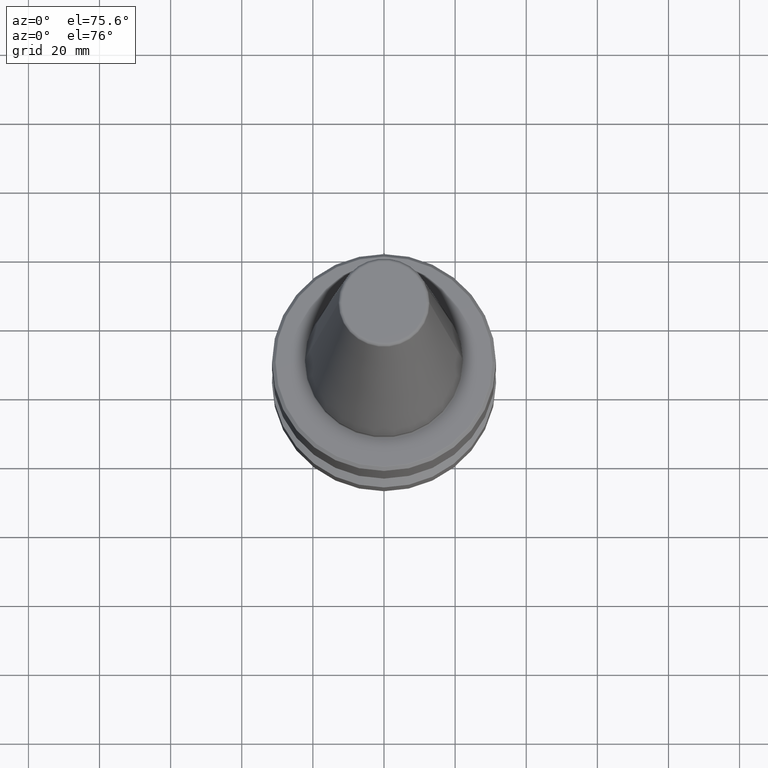
[diagram: clean part render]
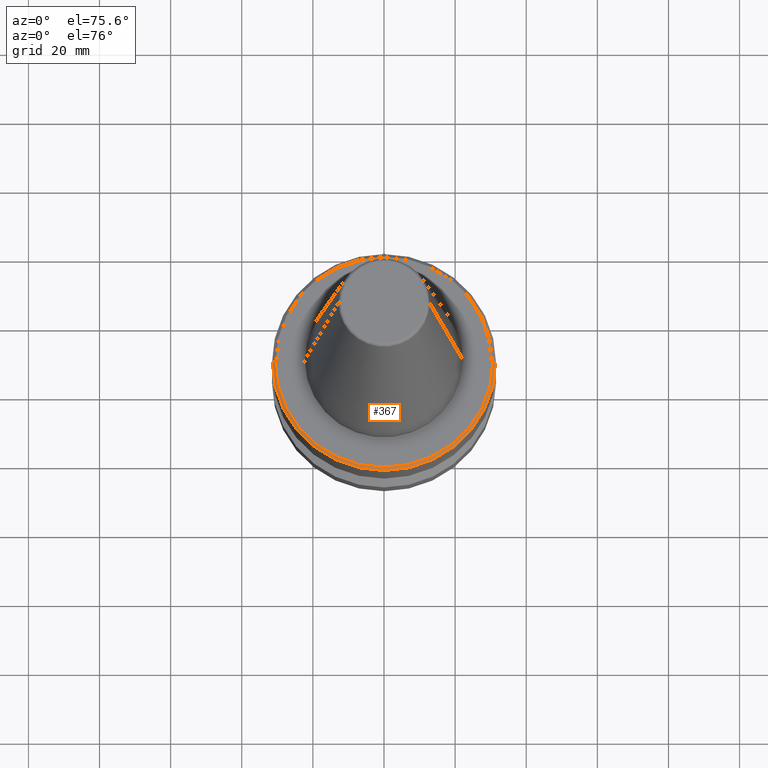
[diagram: same view with one face highlighted and labeled with its STEP entity id]
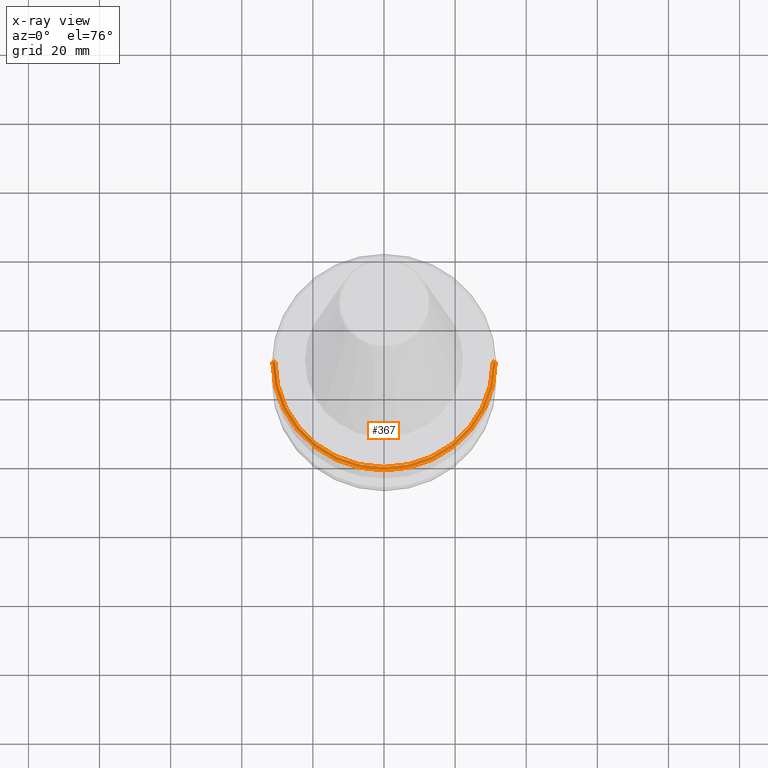
[diagram: x-ray of the same camera — body ghosted, the highlighted face saturated]
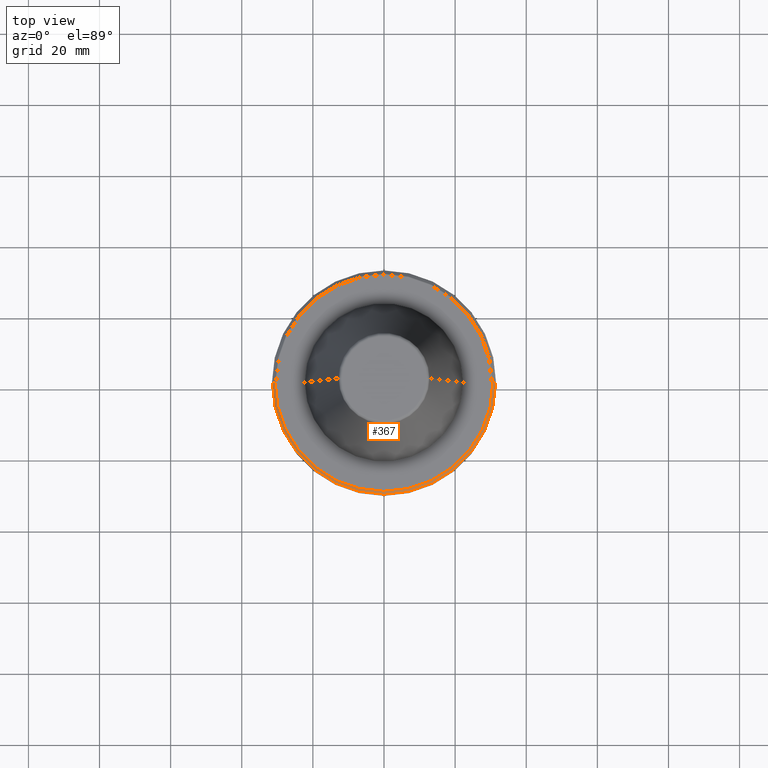
[diagram: same view with one face highlighted and labeled with its STEP entity id]
A machine part, auxiliary view. The second image highlights one B-rep face of the part: STEP entity #367.
The next image is the same camera in x-ray: the body ghosted, the highlighted face saturated — about 0% of this face is hidden behind the body in this view.
A second angle (top view) of the same face is appended — the face is thin or edge-on in the first view.
In plain terms, the highlighted conical surface has half-angle 45 deg.
Its self-contained STEP definition (entity closure, byte-faithful):
#75 = AXIS2_PLACEMENT_3D ( 'NONE', #565, #1231, #662 ) ;
#104 = CARTESIAN_POINT ( 'NONE',  ( -30.61715728752537700, 0.0000000000000000000, -2.117157287525386800 ) ) ;
#127 = VERTEX_POINT ( 'NONE', #230 ) ;
#134 = DIRECTION ( 'NONE',  ( 0.7071067811865506800, 8.659560562354971100E-017, -0.7071067811865443500 ) ) ;
#139 = AXIS2_PLACEMENT_3D ( 'NONE', #752, #201, #850 ) ;
#164 = CARTESIAN_POINT ( 'NONE',  ( 30.61715728752537700, 3.749520367115901000E-015, -2.117157287525386800 ) ) ;
#201 = DIRECTION ( 'NONE',  ( -0.0000000000000000000, -0.0000000000000000000, 1.000000000000000000 ) ) ;
#230 = CARTESIAN_POINT ( 'NONE',  ( 30.61715728752537700, 3.796405077356794300E-015, -2.117157287525386800 ) ) ;
#237 = LINE ( 'NONE', #976, #326 ) ;
#326 = VECTOR ( 'NONE', #1107, 1000.000000000000000 ) ;
#365 = ORIENTED_EDGE ( 'NONE', *, *, #688, .T. ) ;
#367 = ADVANCED_FACE ( 'NONE', ( #718 ), #1168, .T. ) ;
#374 = ORIENTED_EDGE ( 'NONE', *, *, #1212, .F. ) ;
#444 = CIRCLE ( 'NONE', #139, 31.38284271247461600 ) ;
#485 = VECTOR ( 'NONE', #134, 1000.000000000000000 ) ;
#508 = AXIS2_PLACEMENT_3D ( 'NONE', #1017, #904, #896 ) ;
#565 = CARTESIAN_POINT ( 'NONE',  ( 0.0000000000000000000, 0.0000000000000000000, -2.117157287525386800 ) ) ;
#593 = ORIENTED_EDGE ( 'NONE', *, *, #852, .F. ) ;
#610 = ORIENTED_EDGE ( 'NONE', *, *, #1206, .T. ) ;
#621 = CIRCLE ( 'NONE', #75, 30.61715728752537700 ) ;
#662 = DIRECTION ( 'NONE',  ( 1.000000000000000000, 0.0000000000000000000, 0.0000000000000000000 ) ) ;
#670 = CARTESIAN_POINT ( 'NONE',  ( -31.38284271247461600, 0.0000000000000000000, -2.882842712474617700 ) ) ;
#688 = EDGE_CURVE ( 'NONE', #1218, #728, #237, .T. ) ;
#715 = CARTESIAN_POINT ( 'NONE',  ( 31.38284271247461600, 3.843289787597687600E-015, -2.882842712474617700 ) ) ;
#718 = FACE_OUTER_BOUND ( 'NONE', #796, .T. ) ;
#723 = LINE ( 'NONE', #164, #485 ) ;
#728 = VERTEX_POINT ( 'NONE', #670 ) ;
#752 = CARTESIAN_POINT ( 'NONE',  ( 0.0000000000000000000, 0.0000000000000000000, -2.882842712474617700 ) ) ;
#796 = EDGE_LOOP ( 'NONE', ( #593, #374, #365, #610 ) ) ;
#850 = DIRECTION ( 'NONE',  ( 1.000000000000000000, 0.0000000000000000000, 0.0000000000000000000 ) ) ;
#852 = EDGE_CURVE ( 'NONE', #127, #1052, #723, .T. ) ;
#896 = DIRECTION ( 'NONE',  ( -1.000000000000000000, 0.0000000000000000000, 0.0000000000000000000 ) ) ;
#904 = DIRECTION ( 'NONE',  ( 0.0000000000000000000, 0.0000000000000000000, -1.000000000000000000 ) ) ;
#976 = CARTESIAN_POINT ( 'NONE',  ( -30.61715728752537700, 0.0000000000000000000, -2.117157287525386800 ) ) ;
#1017 = CARTESIAN_POINT ( 'NONE',  ( 0.0000000000000000000, 0.0000000000000000000, -2.117157287525386800 ) ) ;
#1052 = VERTEX_POINT ( 'NONE', #715 ) ;
#1107 = DIRECTION ( 'NONE',  ( -0.7071067811865506800, 0.0000000000000000000, -0.7071067811865443500 ) ) ;
#1168 = CONICAL_SURFACE ( 'NONE', #508, 30.61715728752537700, 0.7853981633974528300 ) ;
#1206 = EDGE_CURVE ( 'NONE', #728, #1052, #444, .T. ) ;
#1212 = EDGE_CURVE ( 'NONE', #1218, #127, #621, .T. ) ;
#1218 = VERTEX_POINT ( 'NONE', #104 ) ;
#1231 = DIRECTION ( 'NONE',  ( -0.0000000000000000000, -0.0000000000000000000, 1.000000000000000000 ) ) ;